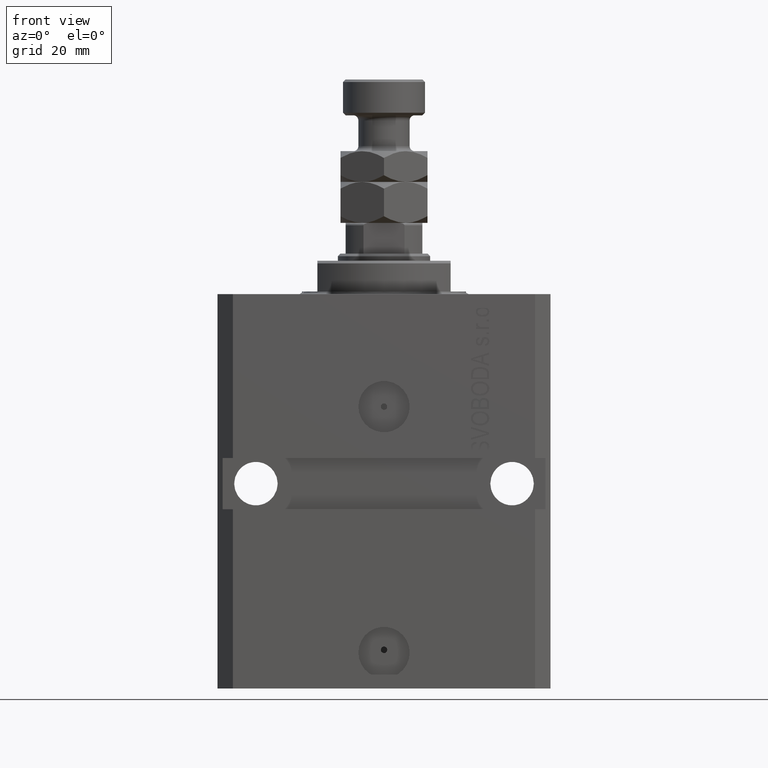
[diagram: clean part render]
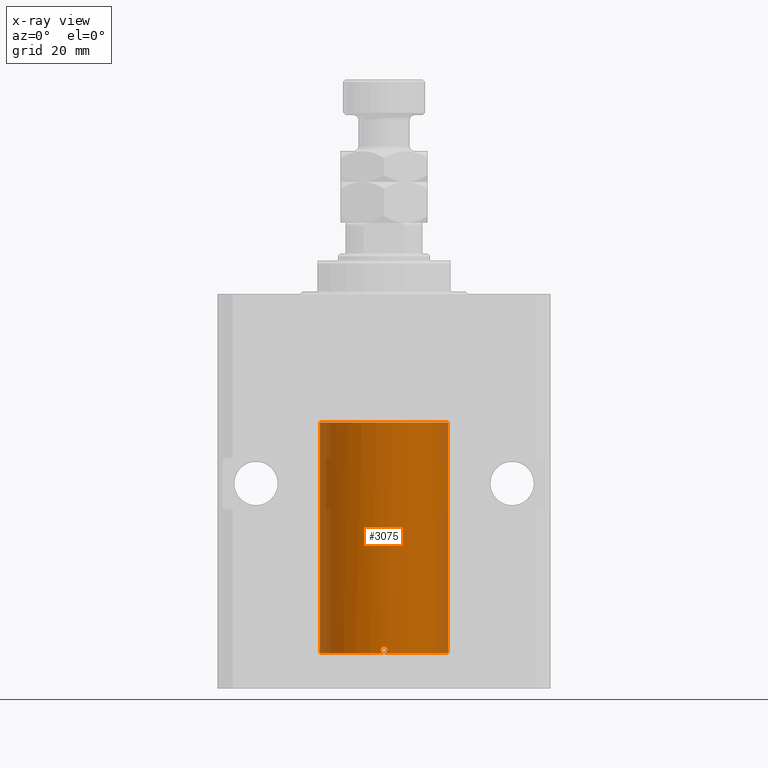
[diagram: x-ray — body ghosted, one internal face saturated and labeled with its STEP entity id]
A machine part, front view, then the same camera in x-ray: the body is ghosted and one INTERNAL B-rep face — a face not visible from any outside direction — is saturated and labeled: STEP entity #3075.
In plain terms, the highlighted cylindrical surface (partial cylindrical patch) has radius 12.5 mm, axis along (0, 0, 1).
Its self-contained STEP definition (entity closure, byte-faithful):
#34 = CARTESIAN_POINT ( 'NONE',  ( -12.49625500642807729, -0.3269795983093125580, -64.44293326880233508 ) ) ;
#601 = CARTESIAN_POINT ( 'NONE',  ( 0.08262306818364176242, -12.50000000000000000, -70.09999999999999432 ) ) ;
#713 = CARTESIAN_POINT ( 'NONE',  ( -0.5571821530518563659, -12.48810851326189031, -69.14827784464195304 ) ) ;
#946 = CARTESIAN_POINT ( 'NONE',  ( -0.3266214369556185715, -12.49626442692393979, -68.91775879961872420 ) ) ;
#986 = CARTESIAN_POINT ( 'NONE',  ( -0.1650848372272839815, -12.50000000000000178, -70.10000000000000853 ) ) ;
#1020 = ORIENTED_EDGE ( 'NONE', *, *, #43354, .T. ) ;
#1210 = CARTESIAN_POINT ( 'NONE',  ( -0.6250000000000026645, -12.48436522214885969, -69.63984350486184383 ) ) ;
#2859 = AXIS2_PLACEMENT_3D ( 'NONE', #31417, #45157, #45634 ) ;
#3075 = ADVANCED_FACE ( 'NONE', ( #9263 ), #23949, .F. ) ;
#4000 = ORIENTED_EDGE ( 'NONE', *, *, #7700, .T. ) ;
#4497 = AXIS2_PLACEMENT_3D ( 'NONE', #11994, #16147, #37154 ) ;
#4669 = DIRECTION ( 'NONE',  ( 1.000000000000000000, 0.000000000000000000, 0.000000000000000000 ) ) ;
#4774 = CARTESIAN_POINT ( 'NONE',  ( 0.6250000000003167466, -12.48436522214884725, -69.63812747540310966 ) ) ;
#5374 = CIRCLE ( 'NONE', #38130, 12.50000000000000000 ) ;
#5548 = CARTESIAN_POINT ( 'NONE',  ( -12.50000000000017941, 3.883381774819353300E-13, -65.62500000000359535 ) ) ;
#5784 = CARTESIAN_POINT ( 'NONE',  ( -12.50000000000000000, 1.530808498934191127E-15, -70.09999999999999432 ) ) ;
#5932 = DIRECTION ( 'NONE',  ( -0.000000000000000000, -0.000000000000000000, 1.000000000000000000 ) ) ;
#6598 = EDGE_CURVE ( 'NONE', #40477, #32966, #39941, .T. ) ;
#6653 = ORIENTED_EDGE ( 'NONE', *, *, #29920, .F. ) ;
#7700 = EDGE_CURVE ( 'NONE', #32966, #34119, #15478, .T. ) ;
#7704 = CARTESIAN_POINT ( 'NONE',  ( -0.6250000000000025535, -12.48436522214886324, -69.47499999999999432 ) ) ;
#8011 = DIRECTION ( 'NONE',  ( -0.000000000000000000, -0.000000000000000000, 1.000000000000000000 ) ) ;
#8104 = EDGE_CURVE ( 'NONE', #37043, #39675, #44743, .T. ) ;
#8132 = VERTEX_POINT ( 'NONE', #5784 ) ;
#8141 = CARTESIAN_POINT ( 'NONE',  ( 0.5002336959535146343, -12.49012317397092886, -69.09133113277157179 ) ) ;
#8179 = CARTESIAN_POINT ( 'NONE',  ( 1.470104640658484994E-15, -12.50000000000000000, -70.09999999999999432 ) ) ;
#8282 = VECTOR ( 'NONE', #40378, 1000.000000000000000 ) ;
#9263 = FACE_OUTER_BOUND ( 'NONE', #24034, .T. ) ;
#9309 = EDGE_CURVE ( 'NONE', #8132, #25913, #26670, .T. ) ;
#10271 = CARTESIAN_POINT ( 'NONE',  ( -12.50000000000000000, -1.050566418211748297E-14, -64.37500000000000000 ) ) ;
#10544 = DIRECTION ( 'NONE',  ( 0.000000000000000000, 0.000000000000000000, 1.000000000000000000 ) ) ;
#11172 = CARTESIAN_POINT ( 'NONE',  ( 0.6249999999998496758, -12.48436522214886857, -69.39345217010018985 ) ) ;
#11287 = CARTESIAN_POINT ( 'NONE',  ( 0.3151108292487665996, -12.49625698805480845, -70.02093695688176922 ) ) ;
#11352 = CARTESIAN_POINT ( 'NONE',  ( 12.50000000000000000, 0.000000000000000000, -25.10000000000000142 ) ) ;
#11408 = EDGE_CURVE ( 'NONE', #25913, #40477, #16143, .T. ) ;
#11662 = CARTESIAN_POINT ( 'NONE',  ( -0.3268155536464903976, -12.49625914831439921, -70.03213681627768494 ) ) ;
#11772 = EDGE_CURVE ( 'NONE', #33743, #38629, #43913, .T. ) ;
#11994 = CARTESIAN_POINT ( 'NONE',  ( 0.000000000000000000, 0.000000000000000000, -70.09999999999999432 ) ) ;
#13542 = ORIENTED_EDGE ( 'NONE', *, *, #8104, .T. ) ;
#13973 = CARTESIAN_POINT ( 'NONE',  ( -12.48435842450557942, -0.6251357828645015546, -64.83560799371402084 ) ) ;
#14297 = CARTESIAN_POINT ( 'NONE',  ( 0.6250000000080512264, -12.48436522214846001, -69.47499999999922693 ) ) ;
#15121 = DIRECTION ( 'NONE',  ( 0.000000000000000000, 0.000000000000000000, 1.000000000000000000 ) ) ;
#15478 = CIRCLE ( 'NONE', #25179, 12.50000000000000000 ) ;
#16143 = B_SPLINE_CURVE_WITH_KNOTS ( 'NONE', 3,
 ( #42658, #31933, #45928, #42427, #35205, #13973, #39168, #34, #20980, #10271 ),
 .UNSPECIFIED., .F., .F.,
 ( 4, 2, 2, 2, 4 ),
 ( 0.001954339881912785671, 0.002442813509249236806, 0.002931287136585688374, 0.003419760763922139509, 0.003908234391258590644 ),
 .UNSPECIFIED. ) ;
#16147 = DIRECTION ( 'NONE',  ( 0.000000000000000000, 0.000000000000000000, 1.000000000000000000 ) ) ;
#17305 = CARTESIAN_POINT ( 'NONE',  ( 0.000000000000000000, 0.000000000000000000, -25.10000000000000142 ) ) ;
#18667 = ORIENTED_EDGE ( 'NONE', *, *, #11772, .F. ) ;
#18837 = CARTESIAN_POINT ( 'NONE',  ( 12.50000000000000000, 0.000000000000000000, -70.09999999999999432 ) ) ;
#20980 = CARTESIAN_POINT ( 'NONE',  ( -12.50000000000000355, -0.1651708725692959678, -64.37500000000002842 ) ) ;
#21661 = CARTESIAN_POINT ( 'NONE',  ( 0.000000000000000000, 0.000000000000000000, -70.09999999999999432 ) ) ;
#22105 = CARTESIAN_POINT ( 'NONE',  ( 0.1629224624750973960, -12.50000332393458891, -68.84993352130271660 ) ) ;
#23161 = CARTESIAN_POINT ( 'NONE',  ( -12.50000000000000000, 1.530808498934191127E-15, -70.09999999999999432 ) ) ;
#23949 = CYLINDRICAL_SURFACE ( 'NONE', #2859, 12.50000000000000000 ) ;
#24034 = EDGE_LOOP ( 'NONE', ( #6653, #24696, #28041, #43887, #4000, #37833, #18667, #44882, #13542, #1020 ) ) ;
#24252 = CARTESIAN_POINT ( 'NONE',  ( 1.470104640658484994E-15, -12.50000000000000000, -70.09999999999999432 ) ) ;
#24696 = ORIENTED_EDGE ( 'NONE', *, *, #9309, .T. ) ;
#25179 = AXIS2_PLACEMENT_3D ( 'NONE', #17305, #10544, #32428 ) ;
#25186 = CARTESIAN_POINT ( 'NONE',  ( -12.50000000000000000, -1.050566418211748297E-14, -64.37500000000000000 ) ) ;
#25389 = CARTESIAN_POINT ( 'NONE',  ( -0.6250000000000025535, -12.48436522214886324, -69.47499999999999432 ) ) ;
#25512 = CARTESIAN_POINT ( 'NONE',  ( 0.6250000000080512264, -12.48436522214846001, -69.47499999999922693 ) ) ;
#25855 = CARTESIAN_POINT ( 'NONE',  ( -0.1634321124498647193, -12.49999667087055499, -68.85006658259450774 ) ) ;
#25913 = VERTEX_POINT ( 'NONE', #5548 ) ;
#26670 = LINE ( 'NONE', #23161, #40880 ) ;
#27522 = EDGE_CURVE ( 'NONE', #38629, #34119, #36864, .T. ) ;
#28041 = ORIENTED_EDGE ( 'NONE', *, *, #11408, .T. ) ;
#29379 = CARTESIAN_POINT ( 'NONE',  ( -0.5573321180046024725, -12.48810161786719242, -69.80148238604530775 ) ) ;
#29461 = CARTESIAN_POINT ( 'NONE',  ( 1.470104640658484994E-15, -12.50000000000000000, -70.09999999999999432 ) ) ;
#29567 = CARTESIAN_POINT ( 'NONE',  ( 0.3251408448057629963, -12.49631649875954764, -68.91629557722380639 ) ) ;
#29690 = CARTESIAN_POINT ( 'NONE',  ( 0.3844519291904487934, -12.49421963472024188, -69.97447303647051342 ) ) ;
#29920 = EDGE_CURVE ( 'NONE', #8132, #33743, #5374, .T. ) ;
#31417 = CARTESIAN_POINT ( 'NONE',  ( 0.000000000000000000, 0.000000000000000000, -70.09999999999999432 ) ) ;
#31933 = CARTESIAN_POINT ( 'NONE',  ( -12.50000000000000533, -0.1631389274720978777, -65.62500000000017053 ) ) ;
#32428 = DIRECTION ( 'NONE',  ( 1.000000000000000000, 0.000000000000000000, 0.000000000000000000 ) ) ;
#32871 = CARTESIAN_POINT ( 'NONE',  ( -0.6250000000000025535, -12.48436522214886324, -69.47499999999999432 ) ) ;
#32966 = VERTEX_POINT ( 'NONE', #40087 ) ;
#33478 = B_SPLINE_CURVE_WITH_KNOTS ( 'NONE', 3,
 ( #29461, #601, #43687, #11287, #29690, #40196, #4774, #25512 ),
 .UNSPECIFIED., .F., .F.,
 ( 4, 2, 2, 4 ),
 ( 0.000000000000000000, 0.0002443481056286064194, 0.0004886962112572128389, 0.0009773924225144256777 ),
 .UNSPECIFIED. ) ;
#33743 = VERTEX_POINT ( 'NONE', #24252 ) ;
#34119 = VERTEX_POINT ( 'NONE', #11352 ) ;
#35205 = CARTESIAN_POINT ( 'NONE',  ( -12.48437204107163190, -0.6248637920779611665, -65.16542285240649335 ) ) ;
#36800 = CARTESIAN_POINT ( 'NONE',  ( -0.6250000000000027756, -12.48436522214886502, -69.31002761350272579 ) ) ;
#36864 = LINE ( 'NONE', #44091, #8282 ) ;
#37019 = B_SPLINE_CURVE_WITH_KNOTS ( 'NONE', 3,
 ( #32871, #1210, #29379, #11662, #986, #8179 ),
 .UNSPECIFIED., .F., .F.,
 ( 4, 2, 4 ),
 ( 0.002931796015602113753, 0.003420015203430352198, 0.003908234391258590644 ),
 .UNSPECIFIED. ) ;
#37043 = VERTEX_POINT ( 'NONE', #14297 ) ;
#37154 = DIRECTION ( 'NONE',  ( 1.000000000000000000, 0.000000000000000000, 0.000000000000000000 ) ) ;
#37833 = ORIENTED_EDGE ( 'NONE', *, *, #27522, .F. ) ;
#38130 = AXIS2_PLACEMENT_3D ( 'NONE', #21661, #15121, #4669 ) ;
#38629 = VERTEX_POINT ( 'NONE', #18837 ) ;
#38850 = EDGE_CURVE ( 'NONE', #33743, #37043, #33478, .T. ) ;
#39168 = CARTESIAN_POINT ( 'NONE',  ( -12.48809300548636259, -0.5575284115737593194, -64.67380822970859811 ) ) ;
#39675 = VERTEX_POINT ( 'NONE', #7704 ) ;
#39846 = CARTESIAN_POINT ( 'NONE',  ( 0.6087772866342635592, -12.48520622767670574, -69.31152541805840883 ) ) ;
#39941 = LINE ( 'NONE', #43894, #45247 ) ;
#40087 = CARTESIAN_POINT ( 'NONE',  ( -12.50000000000000000, 1.530808498934191127E-15, -25.10000000000000142 ) ) ;
#40196 = CARTESIAN_POINT ( 'NONE',  ( 0.5573988467447082984, -12.48809900631781034, -69.80140147935480854 ) ) ;
#40378 = DIRECTION ( 'NONE',  ( -0.000000000000000000, -0.000000000000000000, 1.000000000000000000 ) ) ;
#40477 = VERTEX_POINT ( 'NONE', #25186 ) ;
#40539 = CARTESIAN_POINT ( 'NONE',  ( 0.6250000000080512264, -12.48436522214846001, -69.47499999999922693 ) ) ;
#40880 = VECTOR ( 'NONE', #5932, 1000.000000000000000 ) ;
#42427 = CARTESIAN_POINT ( 'NONE',  ( -12.48811925907523879, -0.5569488909189597159, -65.32709604503182277 ) ) ;
#42658 = CARTESIAN_POINT ( 'NONE',  ( -12.50000000000017941, 3.883381774819353300E-13, -65.62500000000359535 ) ) ;
#43335 = CARTESIAN_POINT ( 'NONE',  ( 0.5460961315382516501, -12.48810487413754444, -69.16017824283937898 ) ) ;
#43354 = EDGE_CURVE ( 'NONE', #39675, #33743, #37019, .T. ) ;
#43687 = CARTESIAN_POINT ( 'NONE',  ( 0.1636982395582734229, -12.49915742890632053, -70.08372397847031721 ) ) ;
#43887 = ORIENTED_EDGE ( 'NONE', *, *, #6598, .T. ) ;
#43894 = CARTESIAN_POINT ( 'NONE',  ( -12.50000000000000000, 1.530808498934191127E-15, -70.09999999999999432 ) ) ;
#43913 = CIRCLE ( 'NONE', #4497, 12.50000000000000000 ) ;
#44091 = CARTESIAN_POINT ( 'NONE',  ( 12.50000000000000000, 0.000000000000000000, -70.09999999999999432 ) ) ;
#44743 = B_SPLINE_CURVE_WITH_KNOTS ( 'NONE', 3,
 ( #40539, #11172, #39846, #43335, #8141, #29567, #22105, #25855, #946, #713, #36800, #25389 ),
 .UNSPECIFIED., .F., .F.,
 ( 4, 2, 2, 2, 2, 4 ),
 ( 0.0009773924225144256777, 0.001221692871650375710, 0.001465993320786325958, 0.001954594219058255079, 0.002443195117330184199, 0.002931796015602113753 ),
 .UNSPECIFIED. ) ;
#44882 = ORIENTED_EDGE ( 'NONE', *, *, #38850, .T. ) ;
#45157 = DIRECTION ( 'NONE',  ( -0.000000000000000000, -0.000000000000000000, 1.000000000000000000 ) ) ;
#45247 = VECTOR ( 'NONE', #8011, 1000.000000000000000 ) ;
#45634 = DIRECTION ( 'NONE',  ( 1.000000000000000000, 0.000000000000000000, 0.000000000000000000 ) ) ;
#45928 = CARTESIAN_POINT ( 'NONE',  ( -12.49627279065598451, -0.3263143231498932817, -65.55740725890370868 ) ) ;